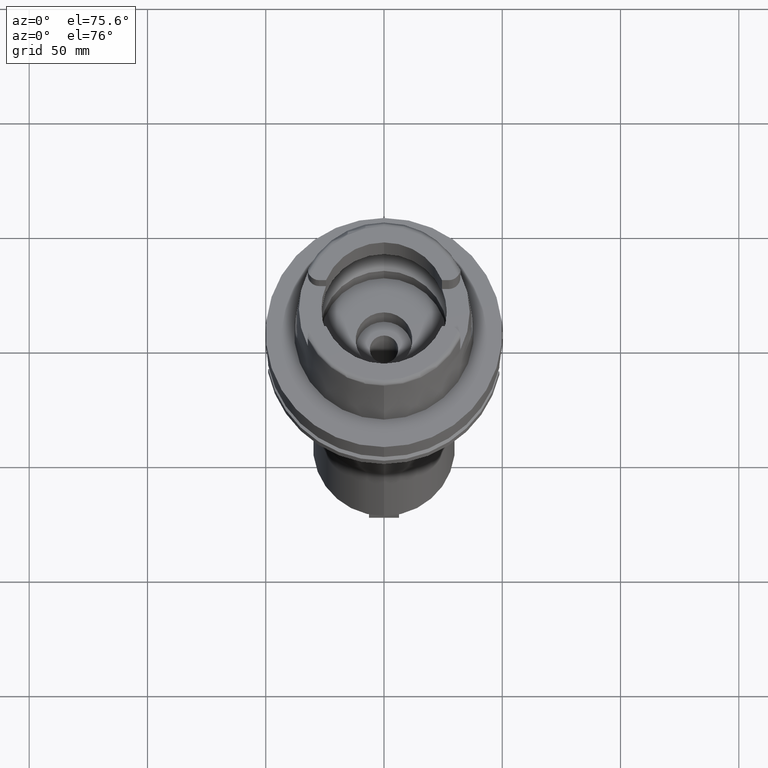
[diagram: clean part render]
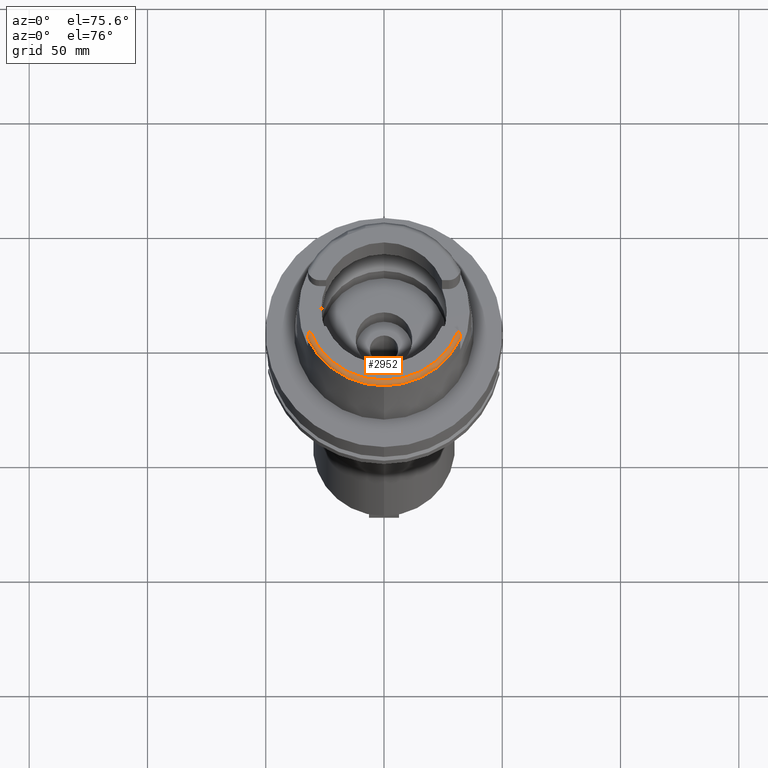
[diagram: same view with one face highlighted and labeled with its STEP entity id]
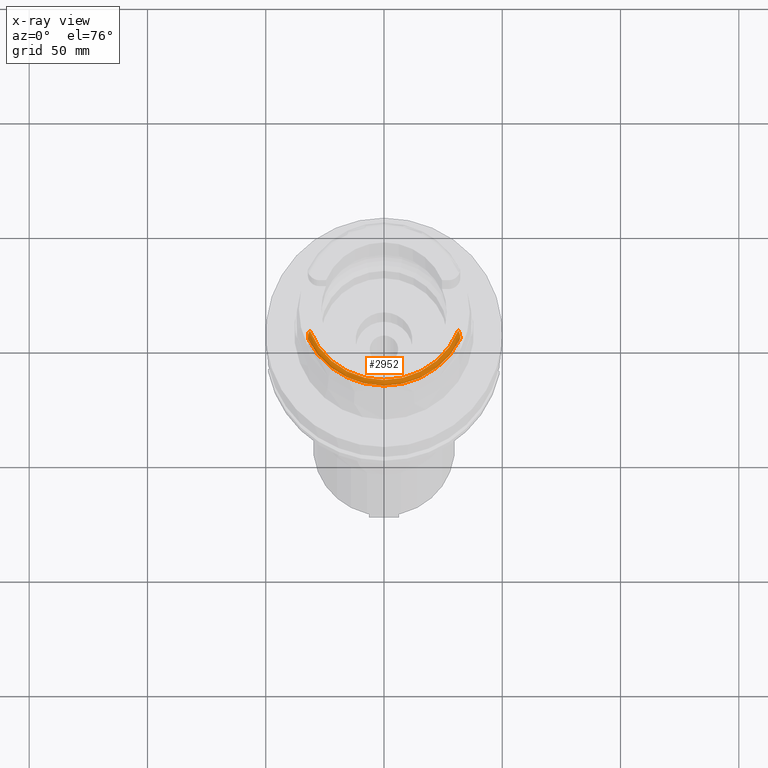
[diagram: x-ray of the same camera — body ghosted, the highlighted face saturated]
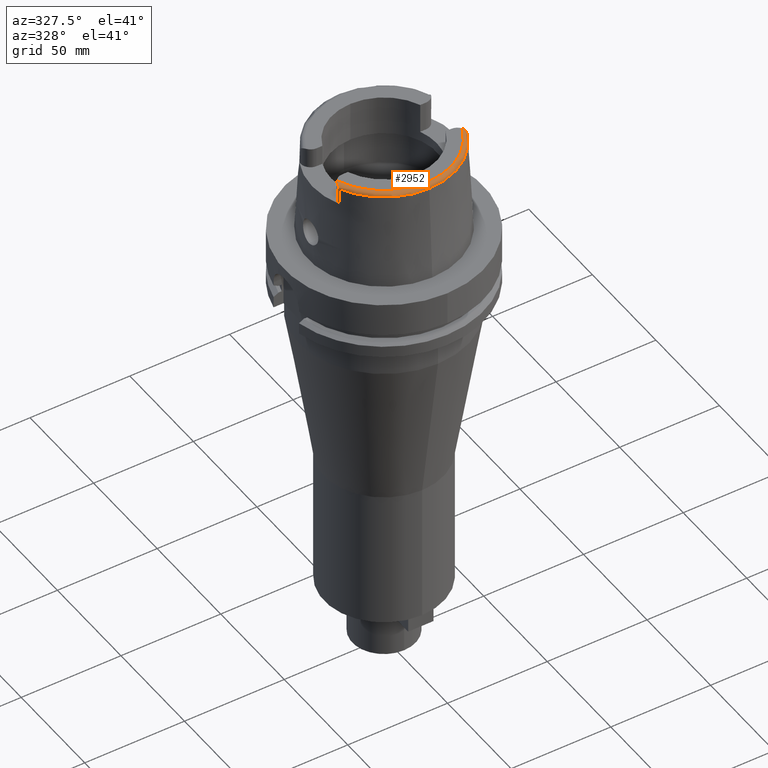
[diagram: same view with one face highlighted and labeled with its STEP entity id]
A machine part, auxiliary view. The second image highlights one B-rep face of the part: STEP entity #2952.
The next image is the same camera in x-ray: the body ghosted, the highlighted face saturated — about 0% of this face is hidden behind the body in this view.
A second angle (auxiliary view) of the same face is appended — the face is thin or edge-on in the first view.
In plain terms, the highlighted toroidal blend (fillet) surface has major radius 33.5974 mm and minor (blend) radius 2 mm.
Its self-contained STEP definition (entity closure, byte-faithful):
#199=CARTESIAN_POINT('',(0.E0,0.E0,5.E1));
#200=DIRECTION('',(0.E0,0.E0,-1.E0));
#201=DIRECTION('',(9.332215253018E-1,-3.593015233942E-1,0.E0));
#202=AXIS2_PLACEMENT_3D('',#199,#200,#201);
#221=CARTESIAN_POINT('',(-3.224999491821E1,-1.506448478560E1,4.809973281625E1));
#222=CARTESIAN_POINT('',(-3.224999491821E1,-1.505848662097E1,4.815050183474E1));
#223=CARTESIAN_POINT('',(-3.225000237150E1,-1.503757961845E1,4.825085058713E1));
#224=CARTESIAN_POINT('',(-3.224999932243E1,-1.497880077805E1,4.840104439489E1));
#225=CARTESIAN_POINT('',(-3.225E1,-1.492248202906E1,4.849801823258E1));
#226=CARTESIAN_POINT('',(-3.225E1,-1.489E1,4.854599893822E1));
#231=CARTESIAN_POINT('',(-3.225E1,-1.489E1,4.854599893822E1));
#232=CARTESIAN_POINT('',(-3.225E1,-1.483545940381E1,4.862656337238E1));
#233=CARTESIAN_POINT('',(-3.224824858056E1,-1.470501605301E1,4.878621457248E1));
#234=CARTESIAN_POINT('',(-3.223265300977E1,-1.444696655743E1,4.902532754573E1));
#235=CARTESIAN_POINT('',(-3.219520223398E1,-1.413436650708E1,4.925886716115E1));
#236=CARTESIAN_POINT('',(-3.212440137737E1,-1.376475258154E1,4.948674456491E1));
#237=CARTESIAN_POINT('',(-3.200453582634E1,-1.333785652317E1,4.969993582725E1));
#238=CARTESIAN_POINT('',(-3.182705737891E1,-1.288155257448E1,4.987291237848E1));
#239=CARTESIAN_POINT('',(-3.159797600399E1,-1.243754763920E1,4.997953205885E1));
#240=CARTESIAN_POINT('',(-3.143639741004E1,-1.218828949486E1,5.E1));
#241=CARTESIAN_POINT('',(-3.135385269249E1,-1.207161079257E1,5.E1));
#246=CARTESIAN_POINT('',(3.135385269249E1,-1.207161079257E1,5.E1));
#247=CARTESIAN_POINT('',(3.143635281213E1,-1.218822645477E1,5.E1));
#248=CARTESIAN_POINT('',(3.159793332094E1,-1.243747431750E1,4.997954493239E1));
#249=CARTESIAN_POINT('',(3.182719817242E1,-1.288177305655E1,4.987288909464E1));
#250=CARTESIAN_POINT('',(3.200491195535E1,-1.333903604292E1,4.969939719954E1));
#251=CARTESIAN_POINT('',(3.212425589200E1,-1.376427017334E1,4.948697387809E1));
#252=CARTESIAN_POINT('',(3.219522968994E1,-1.413437069561E1,4.925890179651E1));
#253=CARTESIAN_POINT('',(3.223274211632E1,-1.444776887790E1,4.902473197825E1));
#254=CARTESIAN_POINT('',(3.224829936893E1,-1.470647807108E1,4.878469011411E1));
#255=CARTESIAN_POINT('',(3.225E1,-1.483596592635E1,4.862581516454E1));
#256=CARTESIAN_POINT('',(3.225E1,-1.489E1,4.854599893822E1));
#261=CARTESIAN_POINT('',(3.225E1,-1.489E1,4.854599893822E1));
#262=CARTESIAN_POINT('',(3.225E1,-1.492381469915E1,4.849604968402E1));
#263=CARTESIAN_POINT('',(3.225000073602E1,-1.498136118128E1,4.839608300072E1));
#264=CARTESIAN_POINT('',(3.224999742392E1,-1.503921740296E1,4.824504605437E1));
#265=CARTESIAN_POINT('',(3.225000552017E1,-1.505875952754E1,4.814776868716E1));
#266=CARTESIAN_POINT('',(3.225000552017E1,-1.506439836030E1,4.810004108666E1));
#271=CARTESIAN_POINT('',(0.E0,0.E0,4.809987853799E1));
#272=DIRECTION('',(0.E0,0.E0,-1.E0));
#273=DIRECTION('',(9.060280460805E-1,-4.232176505246E-1,0.E0));
#274=AXIS2_PLACEMENT_3D('',#271,#272,#273);
#279=CARTESIAN_POINT('',(0.E0,0.E0,4.809987853799E1));
#280=DIRECTION('',(0.E0,0.E0,-1.E0));
#281=DIRECTION('',(0.E0,-1.E0,0.E0));
#282=AXIS2_PLACEMENT_3D('',#279,#280,#281);
#2438=CARTESIAN_POINT('',(-3.135385269249E1,-1.207161079257E1,5.E1));
#2440=VERTEX_POINT('',#2438);
#2450=CARTESIAN_POINT('',(3.135385269249E1,-1.207161079257E1,5.E1));
#2451=VERTEX_POINT('',#2450);
#2474=VERTEX_POINT('',#231);
#2481=VERTEX_POINT('',#221);
#2482=VERTEX_POINT('',#256);
#2483=VERTEX_POINT('',#266);
#2484=CARTESIAN_POINT('',(1.065814103640E-14,-3.559494289391E1,
4.809987853799E1));
#2485=VERTEX_POINT('',#2484);
#2933=CARTESIAN_POINT('',(0.E0,0.E0,4.8E1));
#2934=DIRECTION('',(0.E0,0.E0,1.E0));
#2935=DIRECTION('',(-4.184165975220E-4,-9.999999124638E-1,0.E0));
#2936=AXIS2_PLACEMENT_3D('',#2933,#2934,#2935);
#2937=TOROIDAL_SURFACE('',#2936,3.359743838136E1,2.E0);
#2939=ORIENTED_EDGE('',*,*,#2938,.T.);
#2940=ORIENTED_EDGE('',*,*,#2924,.T.);
#2941=ORIENTED_EDGE('',*,*,#2913,.F.);
#2943=ORIENTED_EDGE('',*,*,#2942,.T.);
#2945=ORIENTED_EDGE('',*,*,#2944,.T.);
#2947=ORIENTED_EDGE('',*,*,#2946,.T.);
#2949=ORIENTED_EDGE('',*,*,#2948,.T.);
#2950=EDGE_LOOP('',(#2939,#2940,#2941,#2943,#2945,#2947,#2949));
#2951=FACE_OUTER_BOUND('',#2950,.F.);
#203=CIRCLE('',#202,3.359743838136E1);
#227=B_SPLINE_CURVE_WITH_KNOTS('',3,(#221,#222,#223,#224,#225,#226),
.UNSPECIFIED.,.F.,.F.,(4,1,1,4),(0.E0,3.333333333333E-1,6.666666666667E-1,1.E0),
.UNSPECIFIED.);
#242=B_SPLINE_CURVE_WITH_KNOTS('',3,(#231,#232,#233,#234,#235,#236,#237,#238,
#239,#240,#241),.UNSPECIFIED.,.F.,.F.,(4,1,1,1,1,1,1,1,4),(0.E0,1.25E-1,2.5E-1,
3.75E-1,5.E-1,6.25E-1,7.5E-1,8.75E-1,1.E0),.UNSPECIFIED.);
#257=B_SPLINE_CURVE_WITH_KNOTS('',3,(#246,#247,#248,#249,#250,#251,#252,#253,
#254,#255,#256),.UNSPECIFIED.,.F.,.F.,(4,1,1,1,1,1,1,1,4),(0.E0,1.25E-1,2.5E-1,
3.75E-1,5.E-1,6.25E-1,7.5E-1,8.75E-1,1.E0),.UNSPECIFIED.);
#267=B_SPLINE_CURVE_WITH_KNOTS('',3,(#261,#262,#263,#264,#265,#266),
.UNSPECIFIED.,.F.,.F.,(4,1,1,4),(0.E0,3.333333333333E-1,6.666666666667E-1,1.E0),
.UNSPECIFIED.);
#275=CIRCLE('',#274,3.559494289391E1);
#283=CIRCLE('',#282,3.559494289391E1);
#2913=EDGE_CURVE('',#2451,#2440,#203,.T.);
#2924=EDGE_CURVE('',#2474,#2440,#242,.T.);
#2938=EDGE_CURVE('',#2481,#2474,#227,.T.);
#2942=EDGE_CURVE('',#2451,#2482,#257,.T.);
#2944=EDGE_CURVE('',#2482,#2483,#267,.T.);
#2946=EDGE_CURVE('',#2483,#2485,#275,.T.);
#2948=EDGE_CURVE('',#2485,#2481,#283,.T.);
#2952=ADVANCED_FACE('',(#2951),#2937,.T.);